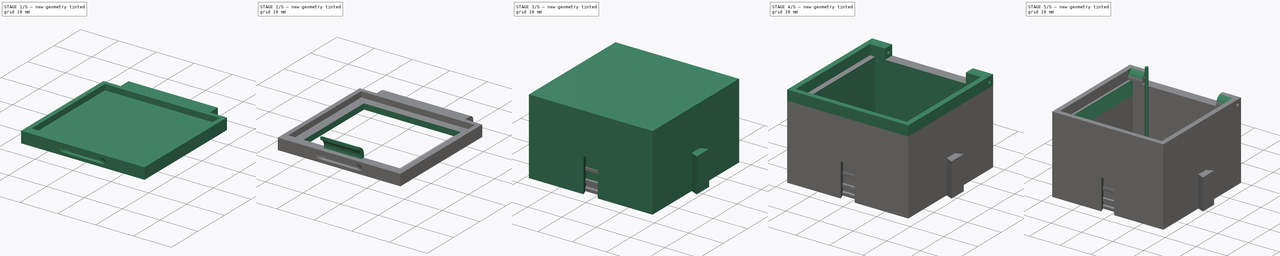
[diagram: build sequence overview — one tinted view per stage of 5, left to right]
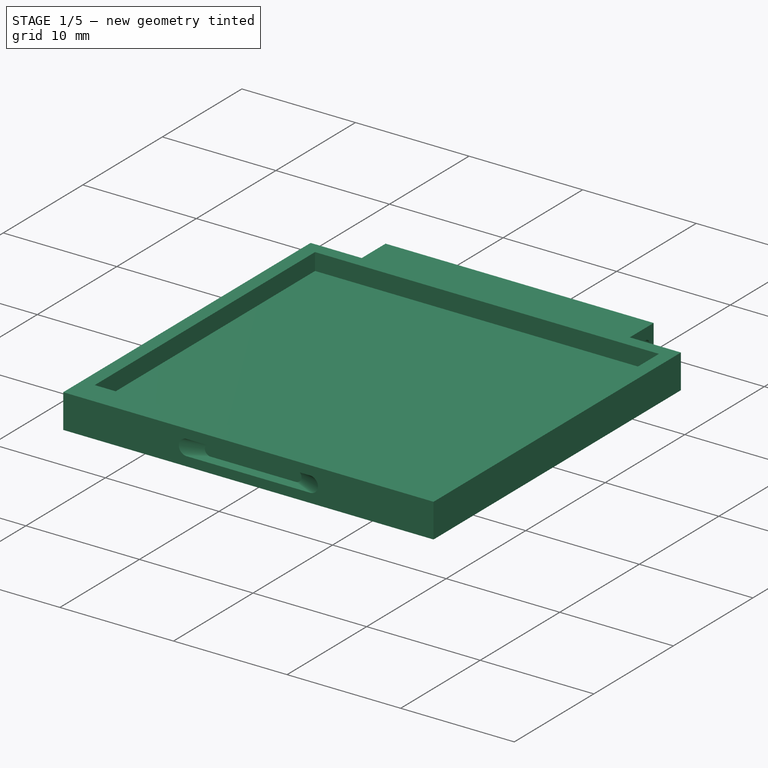
[diagram: stage 1 of 5 — iso view after this stage's code; geometry added in this stage tinted green]
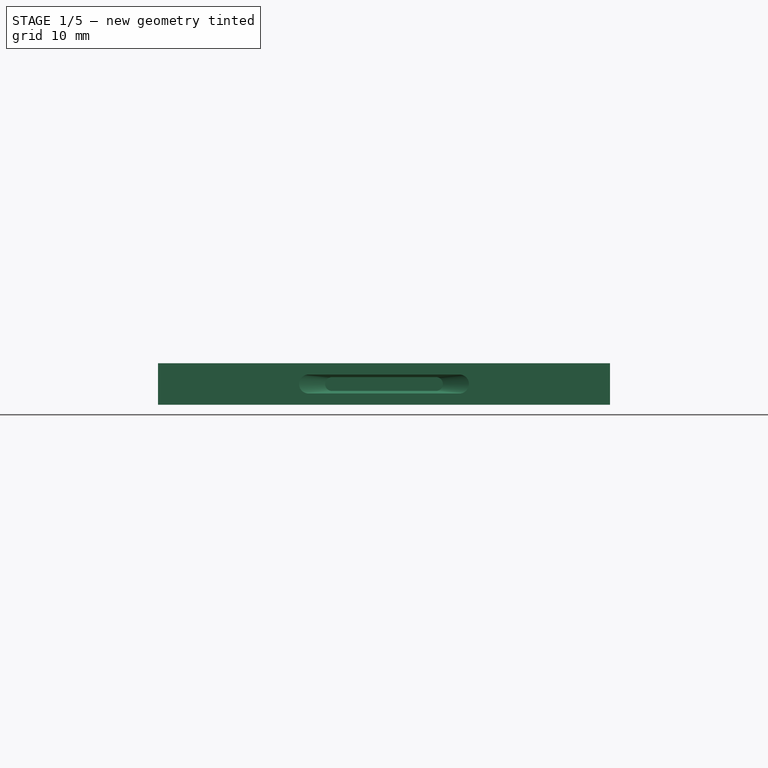
[diagram: stage 1 of 5 — front view after this stage's code; geometry added in this stage tinted green]
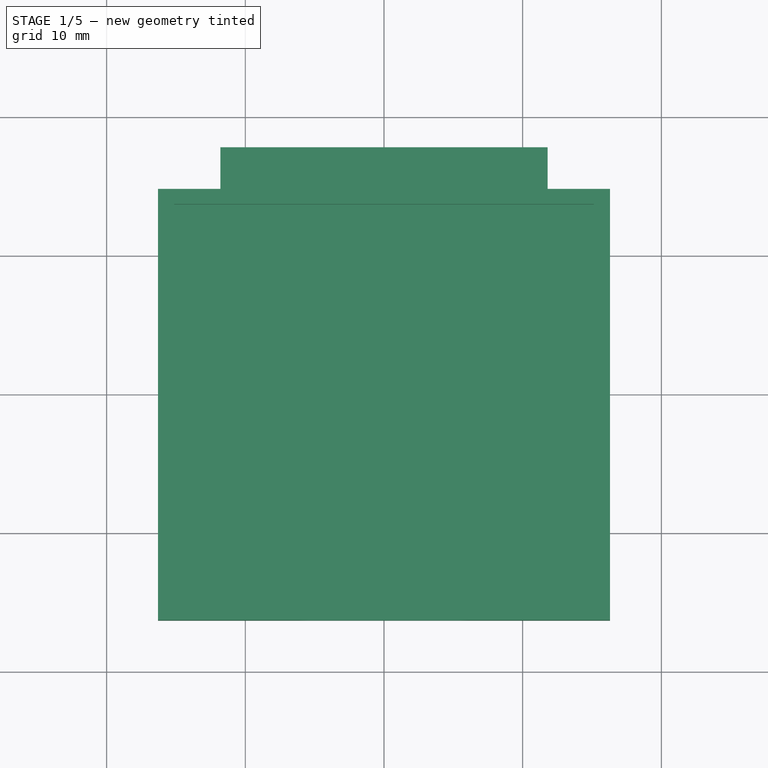
[diagram: stage 1 of 5 — top view after this stage's code; geometry added in this stage tinted green]
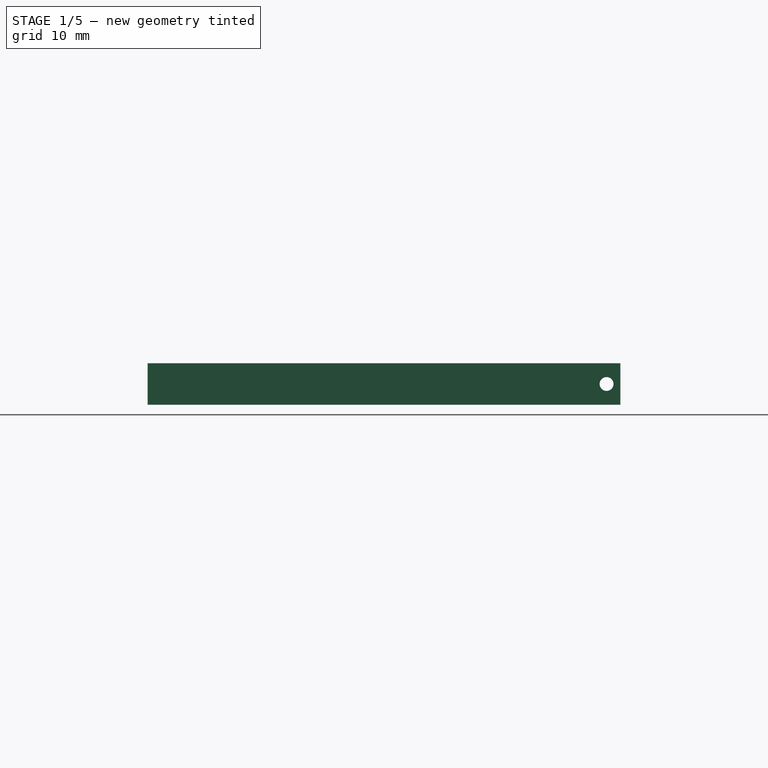
[diagram: stage 1 of 5 — right view after this stage's code; geometry added in this stage tinted green]
FCSTD DOCUMENT  (FreeCAD 0.19R22198 (Git))
Label: smd_smt_modular_boxes
License: All rights reserved
LicenseURL: http://en.wikipedia.org/wiki/All_rights_reserved
objects: Sketcher::SketchObject×16, PartDesign::CoordinateSystem×10, PartDesign::Plane×10, PartDesign::Pad×6, PartDesign::Pocket×6, App::Link×4, PartDesign::Body×3, PartDesign::Fillet×3, App::DocumentObjectGroup×2, PartDesign::ShapeBinder×2, App::FeaturePython×1, Spreadsheet::Sheet×1, PartDesign::AdditiveLoft×1, PartDesign::SubtractiveLoft×1, App::Part×1, PartDesign::Chamfer×1
note: 77 computed .brp shape members not serialized (recipe doc carries the construction recipe); baked Part::Feature solids carry a one-line shape summary decoded from their .brp

FEATURE [PartDesign::ShapeBinder] ShapeBinder001  label="ShapeBinderLead"
  Placement = pos=(0,0,22) rot=(0,0,1;0rad)
  Support = -> [Sketch005]
  TraceSupport = false
FEATURE [Sketcher::SketchObject] Sketch009
  ExternalGeometry = -> [ShapeBinder001]
  MapMode = 5
  Support = -> [XY_Plane002]
  expr: Constraints[23] = Spreadsheet.clearance
  expr: Constraints[22] = Spreadsheet.clearance
  expr: Constraints[21] = Spreadsheet.clearance
  expr: Constraints[16] = Spreadsheet.clearance
  expr: Constraints[15] = Spreadsheet.clearance
  sketch-geometry (9):
    g0: LineSegment StartX=-11.8 StartY=14.8 StartZ=0 EndX=-16.3 EndY=14.8 EndZ=0
    g1: LineSegment StartX=-16.3 StartY=14.8 StartZ=0 EndX=-16.3 EndY=-16.3 EndZ=0
    g2: LineSegment StartX=-16.3 StartY=-16.3 StartZ=0 EndX=16.3 EndY=-16.3 EndZ=0
    g3: LineSegment StartX=16.3 StartY=-16.3 StartZ=0 EndX=16.3 EndY=14.8 EndZ=0
    g4: LineSegment StartX=16.3 StartY=14.8 StartZ=0 EndX=11.8 EndY=14.8 EndZ=0
    g5: LineSegment StartX=11.8 StartY=14.8 StartZ=0 EndX=11.8 EndY=17.8 EndZ=0
    g6: LineSegment StartX=11.8 StartY=17.8 StartZ=0 EndX=-11.8 EndY=17.8 EndZ=0
    g7: LineSegment StartX=-11.8 StartY=17.8 StartZ=0 EndX=-11.8 EndY=14.8 EndZ=0
    g8: LineSegment [constr] StartX=-11.8 StartY=14.8 StartZ=0 EndX=11.8 EndY=14.8 EndZ=0
  constraints (24):
    c: Coincident(g7,g6)
    c: Coincident(g0,g7)
    c: Coincident(g1,g0)
    c: Coincident(g1,g2)
    c: Coincident(g3,g2)
    c: Coincident(g6,g5)
    c: Coincident(g4,g5)
    c: Coincident(g4,g3)
    c: Parallel(g-1,g0)
    c: Parallel(g-1,g4)
    c: Parallel(g-1,g2)
    c: Parallel(g-2,g3)
    c: Parallel(g-2,g1)
    c: Parallel(g-2,g5)
    c: Parallel(g-2,g7)
    c: DistanceY(g6,g-11) = 0.2
    c: DistanceY(g0,g-11) = 0.2
    c: Coincident(g8,g0)
    c: Coincident(g8,g4)
    c: Symmetric(g6,g5,g-2)
    c: Symmetric(g0,g3,g-2)
    c: DistanceX(g-9,g0) = 0.2
    c: DistanceX(g-11,g6) = 0.2
    c: DistanceY(g-7,g1) = 0.2
FEATURE [PartDesign::Pad] Pad003
  Length = 3
  Length2 = 100
  Profile = -> Sketch009
  Type = 0
  expr: Length = Spreadsheet.leadHight
FEATURE [PartDesign::Plane] DatumPlane005  label="DatumPlaneleadKeyOutside"
  AttachmentOffset = pos=(0,0,16.5) rot=(0,0,1;0rad)
  Length = 60
  MapMode = 5
  Placement = pos=(0,-16.5,-3.7e-15) rot=(1,0,0;1.5708rad)
  ResizeMode = 0
  Support = -> [XZ_Plane002]
  Width = 60
  expr: .AttachmentOffset.Base.z = Spreadsheet.width / 2 + Spreadsheet.wallWidth / 2
FEATURE [Sketcher::SketchObject] Sketch010  label="leadKeyOutside"
  MapMode = 5
  Placement = pos=(0,-16.5,-3.7e-15) rot=(1,0,0;1.5708rad)
  Support = -> [DatumPlane005]
  expr: Constraints[6] = Spreadsheet.LeadKeyBaseWidth
  expr: Constraints[7] = Spreadsheet.LeadKeyBaseLenght
  expr: Constraints[8] = Spreadsheet.leadHight / 2
  sketch-geometry (4):
    g0: ArcOfCircle CenterX=-6 CenterY=1.5 CenterZ=0 NormalX=0 NormalY=0 NormalZ=1 AngleXU=0 Radius=0.75 StartAngle=1.5708 EndAngle=4.71239
    g1: ArcOfCircle CenterX=6 CenterY=1.5 CenterZ=0 NormalX=0 NormalY=0 NormalZ=1 AngleXU=0 Radius=0.75 StartAngle=4.71239 EndAngle=7.85398
    g2: LineSegment StartX=-6 StartY=0.75 StartZ=0 EndX=6 EndY=0.75 EndZ=0
    g3: LineSegment StartX=-6 StartY=2.25 StartZ=0 EndX=6 EndY=2.25 EndZ=0
  constraints (9):
    c: Tangent(g0,g3)
    c: Tangent(g0,g2)
    c: Tangent(g2,g1)
    c: Tangent(g3,g1)
    c: Horizontal(g2)
    c: Symmetric(g0,g1,g-2)
    c: DistanceX(g0,g1) = 12
    c: DistanceY(g0,g0) = 1.5
    c: DistanceY(g-1,g0) = 1.5
FEATURE [PartDesign::Plane] DatumPlane006
  AttachmentOffset = pos=(0,0,15.7) rot=(0,0,1;0rad)
  Length = 60
  MapMode = 5
  Placement = pos=(0,-15.7,-3.5e-15) rot=(1,0,0;1.5708rad)
  ResizeMode = 0
  Support = -> [XZ_Plane002]
  Width = 60
  expr: .AttachmentOffset.Base.z = Spreadsheet.width / 2 + Spreadsheet.wallWidth / 2 - Spreadsheet.leadKeyPad
FEATURE [Sketcher::SketchObject] Sketch011  label="leadKeyInside"
  MapMode = 5
  Placement = pos=(0,-15.7,-3.5e-15) rot=(1,0,0;1.5708rad)
  Support = -> [DatumPlane006]
  expr: Constraints[6] = Spreadsheet.leadHight / 2
  expr: Constraints[7] = Spreadsheet.LeadKeyEndLength
  expr: Constraints[8] = Spreadsheet.LeadKeyEndWidth
  sketch-geometry (4):
    g0: ArcOfCircle CenterX=-3.75 CenterY=1.5 CenterZ=0 NormalX=0 NormalY=0 NormalZ=1 AngleXU=0 Radius=0.5 StartAngle=1.5708 EndAngle=4.71239
    g1: ArcOfCircle CenterX=3.75 CenterY=1.5 CenterZ=0 NormalX=0 NormalY=0 NormalZ=1 AngleXU=0 Radius=0.5 StartAngle=4.71239 EndAngle=7.85398
    g2: LineSegment StartX=-3.75 StartY=1 StartZ=0 EndX=3.75 EndY=1 EndZ=0
    g3: LineSegment StartX=-3.75 StartY=2 StartZ=0 EndX=3.75 EndY=2 EndZ=0
  constraints (9):
    c: Tangent(g0,g3)
    c: Tangent(g0,g2)
    c: Tangent(g2,g1)
    c: Tangent(g3,g1)
    c: Horizontal(g2)
    c: Symmetric(g0,g1,g-2)
    c: DistanceY(g-1,g0) = 1.5
    c: DistanceY(g0,g0) = 1
    c: DistanceX(g0,g1) = 7.5
FEATURE [PartDesign::SubtractiveLoft] SubtractiveLoft
  BaseFeature = -> Pad003
  Closed = false
  Profile = -> Sketch010
  Ruled = false
  Sections = -> [Sketch011]
FEATURE [PartDesign::Plane] DatumPlane007
  Length = 60
  MapMode = 5
  Placement = pos=(0,0,0) rot=(0.57735,0.57735,0.57735;2.0944rad)
  ResizeMode = 0
  Support = -> [YZ_Plane002]
  Width = 60
FEATURE [Sketcher::SketchObject] Sketch012  label="hingleHole"
  MapMode = 5
  Placement = pos=(0,0,0) rot=(0.57735,0.57735,0.57735;2.0944rad)
  Support = -> [DatumPlane007]
  expr: Constraints[0] = Spreadsheet.width / 2 + Spreadsheet.wallWidth * 0.6
  expr: Constraints[1] = Spreadsheet.leadHight / 2
  expr: Constraints[2] = Spreadsheet.leadMountingHole / 2
  sketch-geometry (1):
    g0: Circle CenterX=16.8 CenterY=1.5 CenterZ=0 NormalX=0 NormalY=0 NormalZ=1 AngleXU=0 Radius=0.5
  constraints (3):
    c: DistanceX(g-1,g0) = 16.8
    c: DistanceY(g-1,g0) = 1.5
    c: Radius(g0) = 0.5
FEATURE [PartDesign::Pocket] Pocket003
  BaseFeature = -> SubtractiveLoft
  Length = 5
  Length2 = 100
  Midplane = true
  Profile = -> Sketch012
  Type = 1
FEATURE [PartDesign::Plane] DatumPlane008
  AttachmentOffset = pos=(0,0,3) rot=(0,0,1;0rad)
  Length = 60
  MapMode = 5
  Placement = pos=(0,0,3) rot=(0,0,1;0rad)
  ResizeMode = 0
  Support = -> [XY_Plane002]
  Width = 60
  expr: .AttachmentOffset.Base.z = Spreadsheet.leadHight
FEATURE [Sketcher::SketchObject] Sketch013  label="resessForCover"
  ExternalGeometry = -> [ShapeBinder001]
  MapMode = 5
  Placement = pos=(0,0,3) rot=(0,0,1;0rad)
  Support = -> [DatumPlane008]
  sketch-geometry (6):
    g0: LineSegment StartX=-15.1381 StartY=13.7 StartZ=0 EndX=15.1381 EndY=13.7 EndZ=0
    g1: LineSegment StartX=15.1381 StartY=13.7 StartZ=0 EndX=15.1381 EndY=-14 EndZ=0
    g2: LineSegment StartX=15.1381 StartY=-14 StartZ=0 EndX=-15.1381 EndY=-14 EndZ=0
    g3: LineSegment StartX=-15.1381 StartY=-14 StartZ=0 EndX=-15.1381 EndY=13.7 EndZ=0
    g4: LineSegment [constr] StartX=-16.5 StartY=-16.5 StartZ=0 EndX=16.5 EndY=15 EndZ=0
    g5: LineSegment [constr] StartX=-16.5 StartY=15 StartZ=0 EndX=16.5 EndY=-16.5 EndZ=0
  constraints (16):
    c: Coincident(g0,g1)
    c: Coincident(g1,g2)
    c: Coincident(g2,g3)
    c: Coincident(g3,g0)
    c: Horizontal(g0)
    c: Horizontal(g2)
    c: Vertical(g1)
    c: Vertical(g3)
    c: Coincident(g-5,g4)
    c: Coincident(g5,g-7)
    c: Coincident(g5,g-4)
    c: PointOnObject(g0,g5)
    c: PointOnObject(g0,g4)
    c: Coincident(g4,g-7)
    c: DistanceY(g0,g5) = 1.3
    c: DistanceY(g4,g2) = 2.5
FEATURE [Sketcher::SketchObject] Sketch014  label="centralCut"
  ExternalGeometry = -> [ShapeBinder001]
  MapMode = 5
  Placement = pos=(0,0,3) rot=(0,0,1;0rad)
  Support = -> [DatumPlane008]
  sketch-geometry (6):
    g0: LineSegment [constr] StartX=-16.5 StartY=15 StartZ=0 EndX=16.5 EndY=-16.5 EndZ=0
    g1: LineSegment [constr] StartX=16.5 StartY=15 StartZ=0 EndX=-16.5 EndY=-16.5 EndZ=0
    g2: LineSegment StartX=-12.8832 StartY=11.5476 StartZ=0 EndX=12.8832 EndY=11.5476 EndZ=0
    g3: LineSegment StartX=12.8832 StartY=11.5476 StartZ=0 EndX=12.8832 EndY=-13.0476 EndZ=0
    g4: LineSegment StartX=12.8832 StartY=-13.0476 StartZ=0 EndX=-12.8832 EndY=-13.0476 EndZ=0
    g5: LineSegment StartX=-12.8832 StartY=-13.0476 StartZ=0 EndX=-12.8832 EndY=11.5476 EndZ=0
  constraints (16):
    c: Coincident(g0,g-4)
    c: Coincident(g0,g-6)
    c: Coincident(g1,g-7)
    c: Coincident(g1,g-5)
    c: Coincident(g2,g3)
    c: Coincident(g3,g4)
    c: Coincident(g4,g5)
    c: Coincident(g5,g2)
    c: Horizontal(g2)
    c: Horizontal(g4)
    c: Vertical(g3)
    c: Vertical(g5)
    c: PointOnObject(g2,g0)
    c: PointOnObject(g3,g0)
    c: PointOnObject(g2,g1)
    c: Distance(g2,g0) = 5
FEATURE [PartDesign::Pocket] Pocket004
  BaseFeature = -> Pocket003
  Length = 1.5
  Length2 = 100
  Profile = -> Sketch013
  Type = 0
  expr: Length = Spreadsheet.leadHight / 2
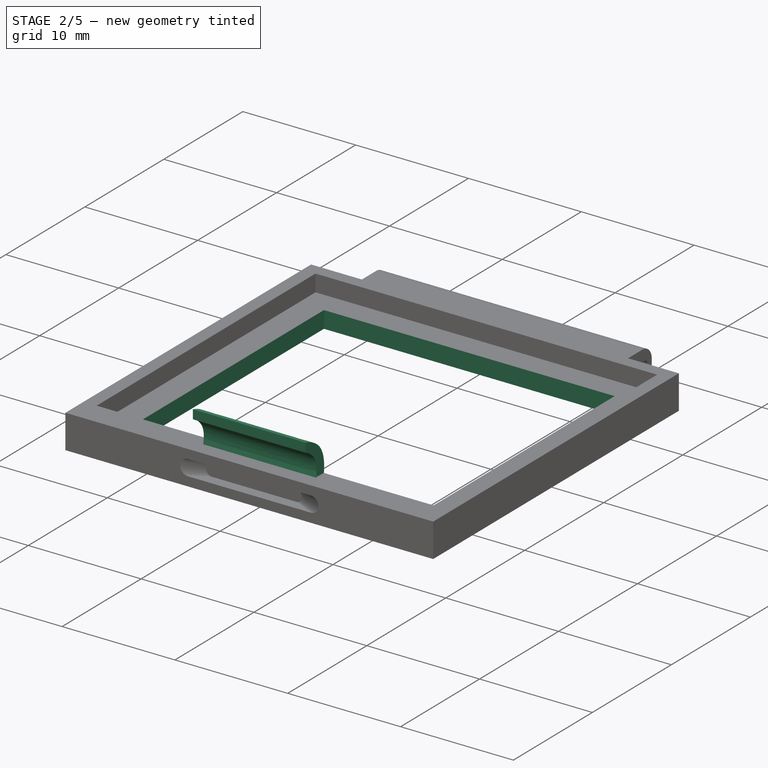
[diagram: stage 2 of 5 — iso view after this stage's code; geometry added in this stage tinted green]
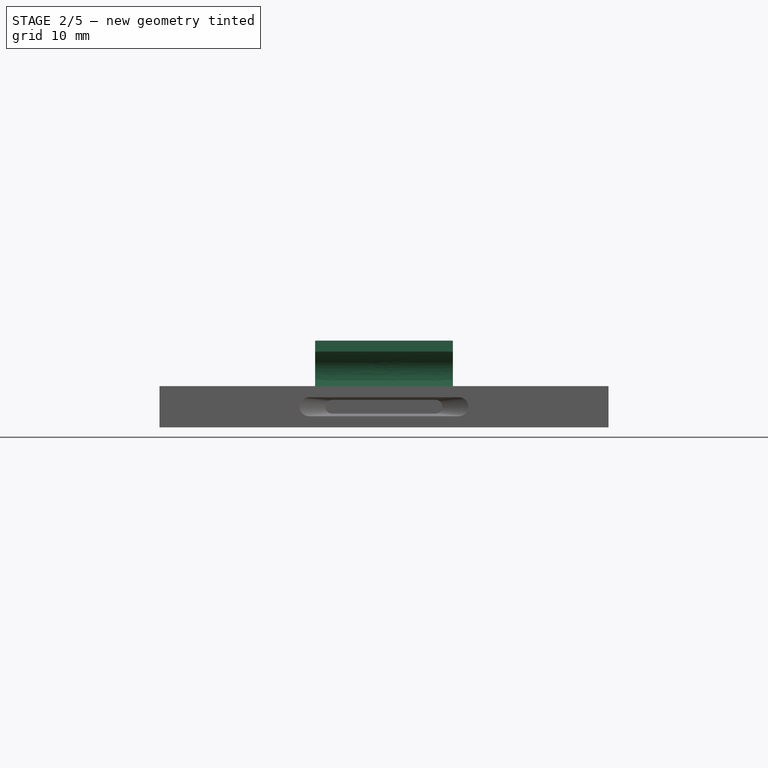
[diagram: stage 2 of 5 — front view after this stage's code; geometry added in this stage tinted green]
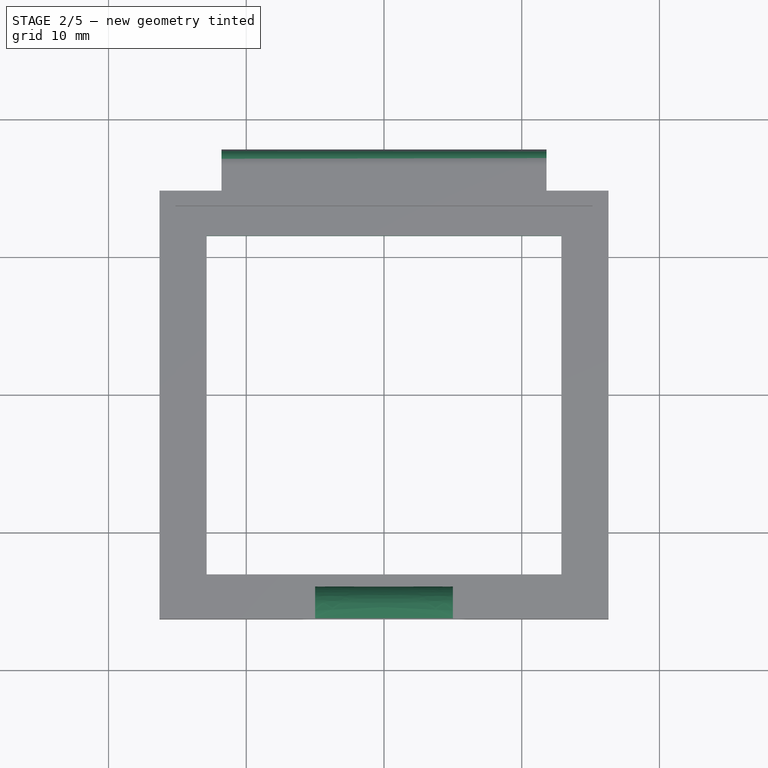
[diagram: stage 2 of 5 — top view after this stage's code; geometry added in this stage tinted green]
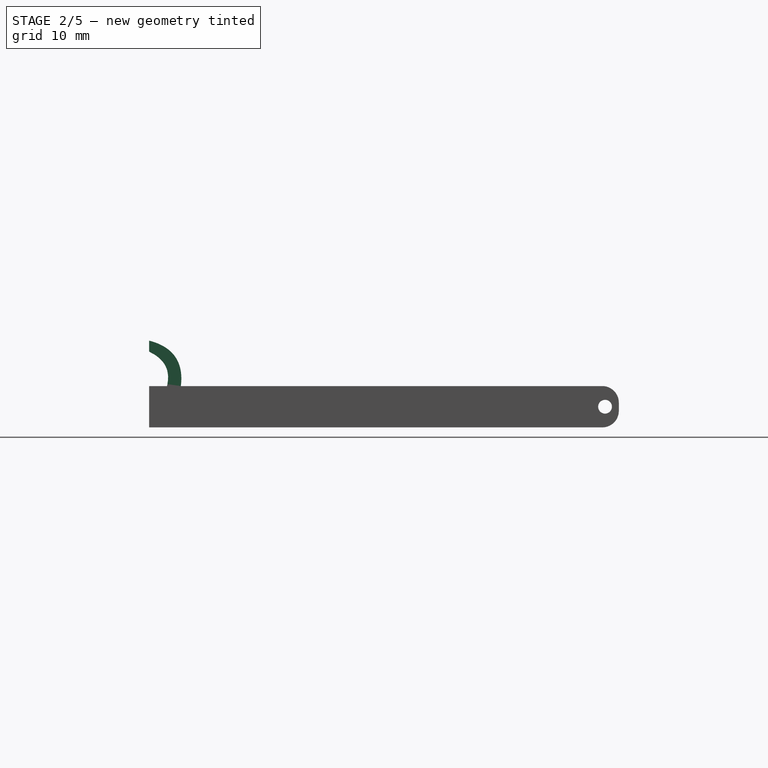
[diagram: stage 2 of 5 — right view after this stage's code; geometry added in this stage tinted green]
FEATURE [PartDesign::Pocket] Pocket005
  BaseFeature = -> Pocket004
  Length = 5
  Length2 = 100
  Profile = -> Sketch014
  Type = 1
FEATURE [PartDesign::Body] hingePin
  Group = -> [LCS_0002,Sketch015,Pad004]
  Origin = -> Origin003
  Tip = -> Pad004
FEATURE [PartDesign::CoordinateSystem] LCS_3  label="LCSPin"
  AttacherType = Attacher::AttachEngine3D
  MapMode = 11
  Placement = pos=(-13,27.25,23.5) rot=(0.707107,0,0.707107;3.14159rad)
FEATURE [App::Link] hingePin001
  AssemblyType = Asm4EE
  AttachedBy = #LCS_0002
  AttachedTo = box001#LCS_3
  LinkPlacement = pos=(-13,27.25,23.5) rot=(0.707107,0,0.707107;3.14159rad)
  LinkedObject = -> hingePin
  Placement = pos=(-13,27.25,23.5) rot=(0.707107,0,0.707107;3.14159rad)
  expr: Placement = box001.Placement * LCS_3.Placement * AttachmentOffset * LCS_0002.Placement ^ -1
FEATURE [PartDesign::Fillet] Fillet
  Base = -> Pocket005 [Edge21,Edge12]
  BaseFeature = -> Pocket005
  Radius = 1.2
  SupportTransform = false
FEATURE [PartDesign::Plane] DatumPlane009  label="DatumPlanehandle"
  Length = 60
  MapMode = 5
  Placement = pos=(0,0,0) rot=(0.57735,0.57735,0.57735;2.0944rad)
  ResizeMode = 0
  Support = -> [YZ_Plane002]
  Width = 60
FEATURE [Sketcher::SketchObject] Sketch018  label="handle"
  ExternalGeometry = -> [Sketch009,Sketch013]
  MapMode = 5
  Placement = pos=(0,0,0) rot=(0.57735,0.57735,0.57735;2.0944rad)
  Support = -> [DatumPlane009]
  sketch-geometry (17):
    g0: LineSegment [constr] StartX=-16.3 StartY=-1.8e-15 StartZ=0 EndX=-16.3 EndY=13.596 EndZ=0
    g1: LineSegment StartX=-14 StartY=3 StartZ=0 EndX=-15 EndY=3 EndZ=0
    g2: Circle [constr] CenterX=-14 CenterY=3 CenterZ=0 NormalX=0 NormalY=0 NormalZ=1 AngleXU=0 Radius=0.3
    g3: Circle [constr] CenterX=-13.6798 CenterY=5.61911 CenterZ=0 NormalX=0 NormalY=0 NormalZ=1 AngleXU=0 Radius=0.3
    g4: Circle [constr] CenterX=-16.3 CenterY=6.3 CenterZ=0 NormalX=0 NormalY=0 NormalZ=1 AngleXU=0 Radius=0.3
    g5: BSplineCurve PolesCount=3 KnotsCount=2 Degree=2 IsPeriodic=0
    g6: GeomPoint [constr] X=-14 Y=3 Z=0
    g7: GeomPoint [constr] X=-16.3 Y=6.3 Z=0
    g8: Circle [constr] CenterX=-15 CenterY=3 CenterZ=0 NormalX=0 NormalY=0 NormalZ=1 AngleXU=0 Radius=0.2
    g9: Circle [constr] CenterX=-14.5899 CenterY=4.69846 CenterZ=0 NormalX=0 NormalY=0 NormalZ=1 AngleXU=0 Radius=0.2
    g10: Circle [constr] CenterX=-16.3 CenterY=5.5 CenterZ=0 NormalX=0 NormalY=0 NormalZ=1 AngleXU=0 Radius=0.2
    g11: BSplineCurve PolesCount=3 KnotsCount=2 Degree=2 IsPeriodic=0
    g12: GeomPoint [constr] X=-15 Y=3 Z=0
    g13: GeomPoint [constr] X=-16.3 Y=5.5 Z=0
    g14: LineSegment StartX=-16.3 StartY=5.5 StartZ=0 EndX=-16.3 EndY=6.3 EndZ=0
    g15: LineSegment [constr] StartX=-16.3 StartY=-1.8e-15 StartZ=0 EndX=-14.5899 EndY=4.69846 EndZ=0
    g16: LineSegment [constr] StartX=-16.3 StartY=-1.8e-15 StartZ=0 EndX=-13.6798 EndY=5.61911 EndZ=0
  constraints (37):
    c: Coincident(g0,g-3)
    c: Vertical(g0)
    c: Parallel(g1,g-1)
    c: Coincident(g5,g1)
    c: Radius(g2) = 0.3
    c: Equal(g2,g3)
    c: Equal(g2,g4)
    c: PointOnObject(g5,g0)
    c: InternalAlignment(g2,g5)
    c: InternalAlignment(g3,g5)
    c: InternalAlignment(g4,g5)
    c: InternalAlignment(g6,g5)
    c: InternalAlignment(g7,g5)
    c: Coincident(g11,g1)
    c: Radius(g8) = 0.2
    c: Equal(g8,g9)
    c: Equal(g8,g10)
    c: PointOnObject(g11,g0)
    c: InternalAlignment(g8,g11)
    c: InternalAlignment(g9,g11)
    c: InternalAlignment(g10,g11)
    c: InternalAlignment(g12,g11)
    c: InternalAlignment(g13,g11)
    c: Coincident(g14,g11)
    c: Coincident(g14,g5)
    c: DistanceY(g11,g5) = 0.8
    c: Coincident(g1,g-4)
    c: DistanceX(g1,g1) = 1
    c: DistanceY(g1,g11) = 2.5
    c: Coincident(g15,g0)
    c: Coincident(g15,g9)
    c: Coincident(g16,g0)
    c: Coincident(g16,g3)
    c: Angle(g-1,g16) = 1.13446
    c: Angle(g-1,g15) = 1.22173
    c: Distance(g0,g9) = 5
    c: Distance(g0,g3) = 6.2
FEATURE [PartDesign::Pad] Pad005
  BaseFeature = -> Fillet
  Length = 10
  Length2 = 100
  Midplane = true
  Profile = -> Sketch018
  Type = 0
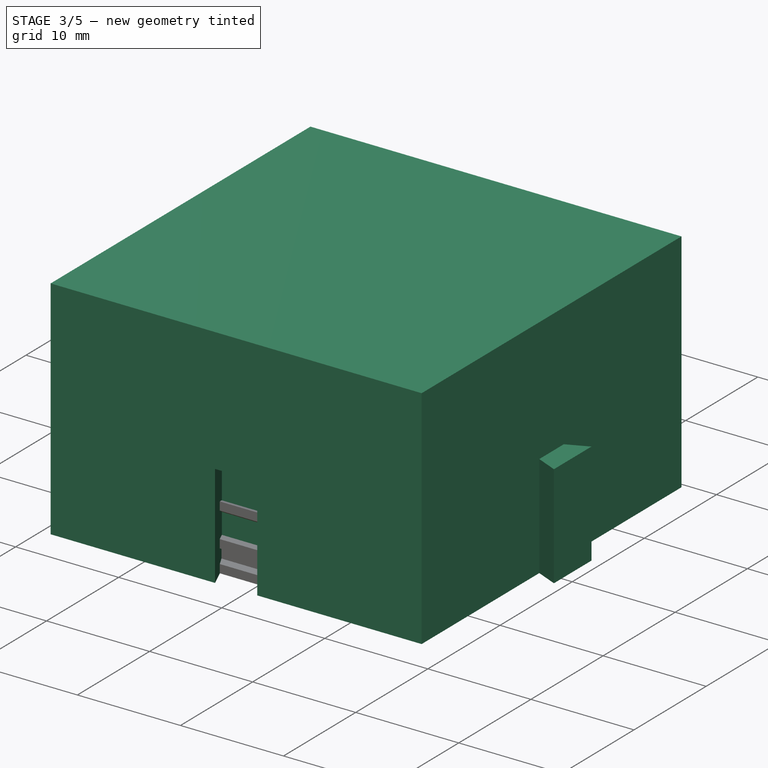
[diagram: stage 3 of 5 — iso view after this stage's code; geometry added in this stage tinted green]
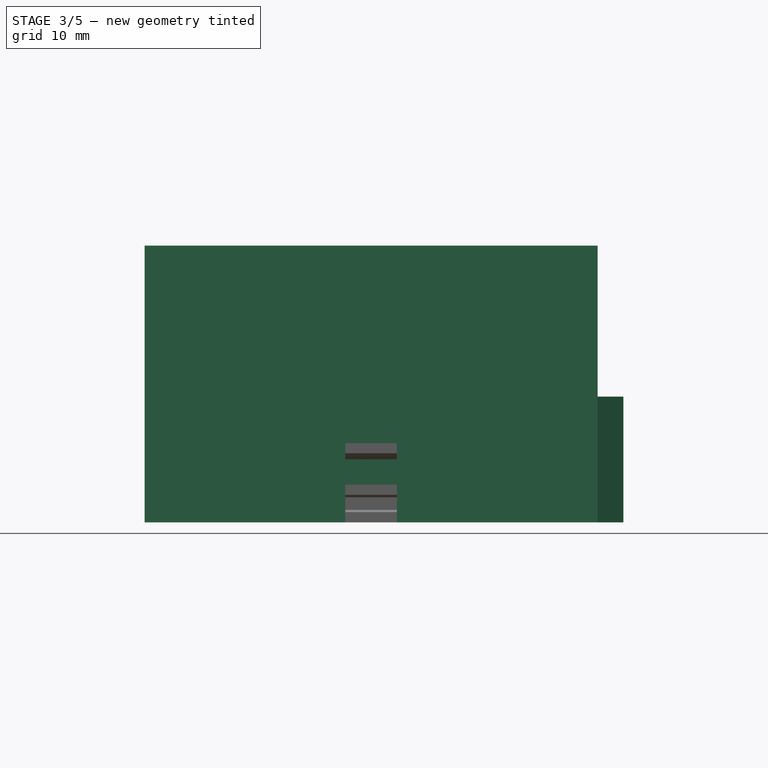
[diagram: stage 3 of 5 — front view after this stage's code; geometry added in this stage tinted green]
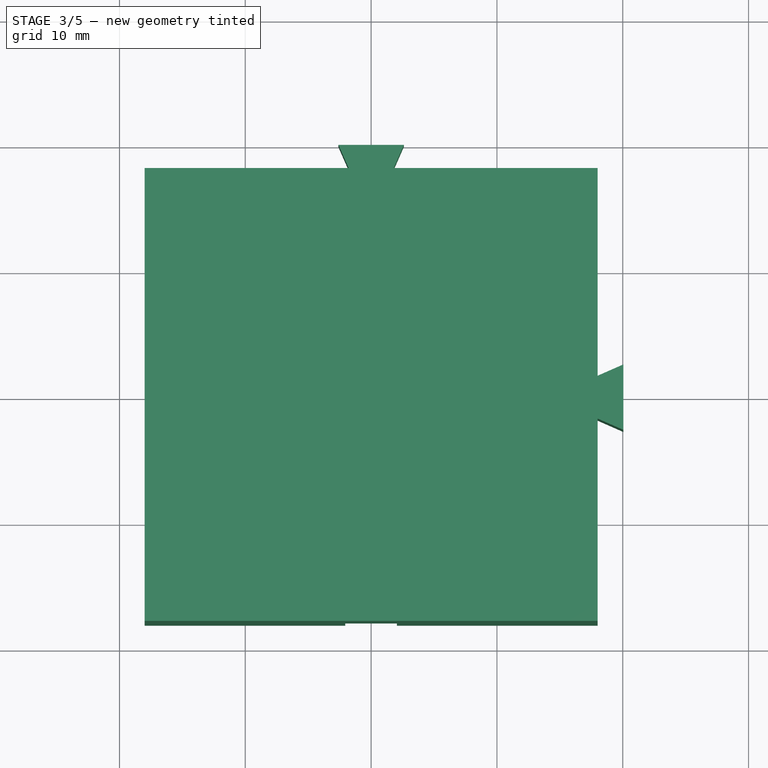
[diagram: stage 3 of 5 — top view after this stage's code; geometry added in this stage tinted green]
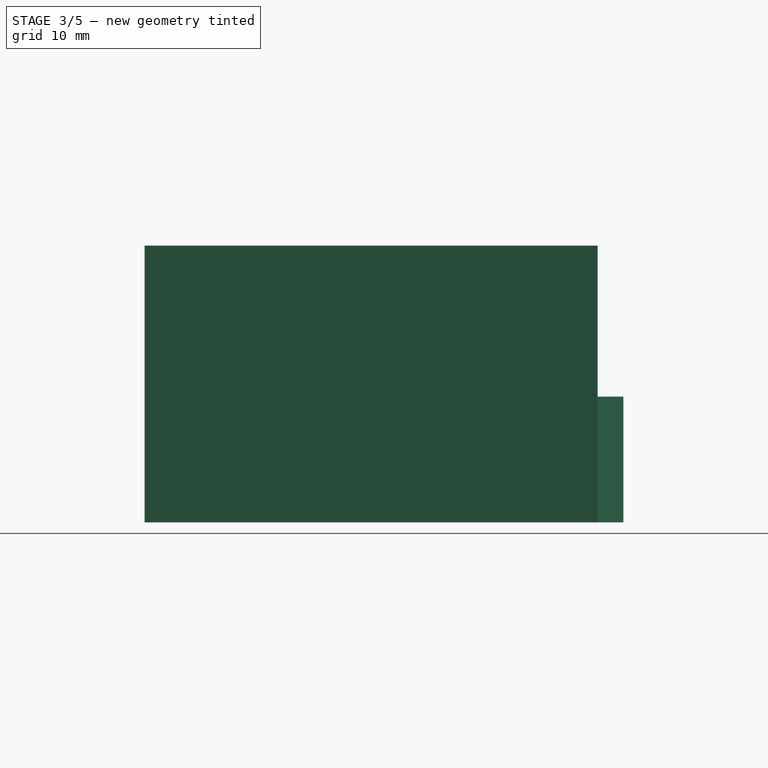
[diagram: stage 3 of 5 — right view after this stage's code; geometry added in this stage tinted green]
FEATURE [PartDesign::CoordinateSystem] LCS_Origin
  AttacherType = Attacher::AttachEngine3D
  MapMode = 2
  Support = -> [X_Axis]
FEATURE [App::DocumentObjectGroup] Constraints
FEATURE [App::FeaturePython] Variables  # WARN: FeaturePython — macro-defined, semantics opaque (R4)
  angleLead = 0
FEATURE [PartDesign::CoordinateSystem] LCS_0
  AttacherType = Attacher::AttachEngine3D
  MapMode = 2
  Support = -> [X_Axis001]
FEATURE [PartDesign::CoordinateSystem] LCS_0001
  AttacherType = Attacher::AttachEngine3D
  MapMode = 2
  Support = -> [X_Axis002]
FEATURE [Spreadsheet::Sheet] Spreadsheet
  cells = A1=lenght; B1(lenght)==30mm; A2=width; B2(width)==30mm; A3=hight; B3(hight)==20mm; A4=wallWidth; B4(wallWidth)==3mm; A5=buttonPad; B5(buttonPad)==2mm; A6=clearance3dPrinting; B6(clearance)==0.2mm; A7=LeadHight; B7(leadHight)==3mm; A8=leadMountingHoleDiameter; B8(leadMountingHole)==1mm; A9=leadKeyPad; B9(leadKeyPad)==0.8mm; A10=leadKeyBaseWidth; B10(LeadKeyBaseWidth)==width / 2.5; A11=LeadKeyBaseLength; B11(LeadKeyBaseLenght)==leadHight / 2; A12=leadKeyEndWidth; B12(LeadKeyEndWidth)==width / 4; A13=leadKeyEndLength; B13(LeadKeyEndLength)==leadHight / 3
FEATURE [PartDesign::Plane] DatumPlane
  Length = 60
  MapMode = 5
  ResizeMode = 0
  Support = -> [XY_Plane001]
  Width = 60
FEATURE [Sketcher::SketchObject] Sketch  label="baseExternal"
  MapMode = 5
  Support = -> [DatumPlane]
  expr: Constraints[8] = Spreadsheet.lenght + Spreadsheet.wallWidth * 2
  expr: Constraints[9] = Spreadsheet.width + Spreadsheet.wallWidth * 2
  sketch-geometry (4):
    g0: LineSegment StartX=-18 StartY=18 StartZ=0 EndX=18 EndY=18 EndZ=0
    g1: LineSegment StartX=18 StartY=18 StartZ=0 EndX=18 EndY=-18 EndZ=0
    g2: LineSegment StartX=18 StartY=-18 StartZ=0 EndX=-18 EndY=-18 EndZ=0
    g3: LineSegment StartX=-18 StartY=-18 StartZ=0 EndX=-18 EndY=18 EndZ=0
  constraints (10):
    c: Coincident(g0,g1)
    c: Coincident(g1,g2)
    c: Coincident(g2,g3)
    c: Coincident(g3,g0)
    c: Horizontal(g2)
    c: Vertical(g3)
    c: Symmetric(g0,g0,g-2)
    c: Symmetric(g0,g1,g-1)
    c: DistanceX(g0,g0) = 36
    c: DistanceY(g1,g0) = 36
FEATURE [PartDesign::Pad] Pad
  Length = 22
  Length2 = 100
  Profile = -> Sketch
  Type = 0
  expr: Length = Spreadsheet.hight + Spreadsheet.buttonPad
FEATURE [PartDesign::ShapeBinder] ShapeBinder  label="baseExternalBinder"
  Support = -> [Sketch]
  TraceSupport = false
FEATURE [Sketcher::SketchObject] Sketch001  label="outsideDovetail"
  ExternalGeometry = -> [ShapeBinder]
  MapMode = 5
  Support = -> [DatumPlane]
  expr: Constraints[7] = Spreadsheet.wallWidth * 0.75 - Spreadsheet.clearance
  expr: Constraints[8] = Spreadsheet.wallWidth * 1.8 - Spreadsheet.clearance
  expr: Constraints[9] = Spreadsheet.wallWidth * 1.2 - Spreadsheet.clearance
  expr: Constraints[19] = Spreadsheet.wallWidth * 0.75 - Spreadsheet.clearance
  sketch-geometry (8):
    g0: LineSegment StartX=-1.7 StartY=18 StartZ=0 EndX=1.7 EndY=18 EndZ=0
    g1: LineSegment StartX=1.7 StartY=18 StartZ=0 EndX=2.6 EndY=20.05 EndZ=0
    g2: LineSegment StartX=2.6 StartY=20.05 StartZ=0 EndX=-2.6 EndY=20.05 EndZ=0
    g3: LineSegment StartX=-2.6 StartY=20.05 StartZ=0 EndX=-1.7 EndY=18 EndZ=0
    g4: LineSegment StartX=18 StartY=1.7 StartZ=0 EndX=18 EndY=-1.7 EndZ=0
    g5: LineSegment StartX=18 StartY=-1.7 StartZ=0 EndX=20.05 EndY=-2.6 EndZ=0
    g6: LineSegment StartX=20.05 StartY=-2.6 StartZ=0 EndX=20.05 EndY=2.6 EndZ=0
    g7: LineSegment StartX=20.05 StartY=2.6 StartZ=0 EndX=18 EndY=1.7 EndZ=0
  constraints (20):
    c: PointOnObject(g0,g-3)
    c: Coincident(g0,g1)
    c: Coincident(g1,g2)
    c: Coincident(g2,g3)
    c: Coincident(g3,g0)
    c: Symmetric(g2,g1,g-2)
    c: Symmetric(g0,g0,g-2)
    c: DistanceY(g0,g1) = 2.05
    c: DistanceX(g2,g1) = 5.2
    c: DistanceX(g0,g0) = 3.4
    c: Coincident(g4,g5)
    c: Coincident(g5,g6)
    c: Coincident(g6,g7)
    c: Coincident(g7,g4)
    c: Equal(g0,g4) = 3.8
    c: Symmetric(g4,g4,g-1)
    c: Symmetric(g5,g6,g-1)
    c: PointOnObject(g4,g-4)
    c: Equal(g2,g6)
    c: DistanceX(g4,g6) = 2.05
FEATURE [Sketcher::SketchObject] Sketch003  label="insideDovetail"
  ExternalGeometry = -> [ShapeBinder]
  MapMode = 5
  Support = -> [DatumPlane]
  expr: Constraints[19] = Spreadsheet.wallWidth * 0.75 + Spreadsheet.clearance
  expr: Constraints[7] = Spreadsheet.wallWidth * 1.3 + Spreadsheet.clearance
  expr: Constraints[6] = Spreadsheet.wallWidth * 2 + Spreadsheet.clearance
  expr: Constraints[18] = Spreadsheet.wallWidth * 0.75 + Spreadsheet.clearance
  sketch-geometry (8):
    g0: LineSegment StartX=-2.05 StartY=-18 StartZ=0 EndX=2.05 EndY=-18 EndZ=0
    g1: LineSegment StartX=2.05 StartY=-18 StartZ=0 EndX=3.1 EndY=-15.55 EndZ=0
    g2: LineSegment StartX=3.1 StartY=-15.55 StartZ=0 EndX=-3.1 EndY=-15.55 EndZ=0
    g3: LineSegment StartX=-3.1 StartY=-15.55 StartZ=0 EndX=-2.05 EndY=-18 EndZ=0
    g4: LineSegment StartX=-18 StartY=2.05 StartZ=0 EndX=-18 EndY=-2.05 EndZ=0
    g5: LineSegment StartX=-18 StartY=-2.05 StartZ=0 EndX=-15.55 EndY=-3.1 EndZ=0
    g6: LineSegment StartX=-15.55 StartY=-3.1 StartZ=0 EndX=-15.55 EndY=3.1 EndZ=0
    g7: LineSegment StartX=-15.55 StartY=3.1 StartZ=0 EndX=-18 EndY=2.05 EndZ=0
  constraints (20):
    c: Coincident(g0,g1)
    c: Coincident(g1,g2)
    c: Coincident(g2,g3)
    c: Coincident(g3,g0)
    c: Symmetric(g2,g1,g-2)
    c: Symmetric(g0,g0,g-2)
    c: DistanceX(g2,g1) = 6.2
    c: DistanceX(g0,g0) = 4.1
    c: Coincident(g4,g5)
    c: Coincident(g5,g6)
    c: Coincident(g6,g7)
    c: Coincident(g7,g4)
    c: Equal(g0,g4) = 3.8
    c: Symmetric(g4,g4,g-1)
    c: Symmetric(g5,g6,g-1)
    c: Equal(g2,g6)
    c: PointOnObject(g0,g-4)
    c: PointOnObject(g4,g-3)
    c: DistanceY(g0,g1) = 2.45
    c: DistanceX(g4,g6) = 2.45
FEATURE [PartDesign::Pad] Pad001
  BaseFeature = -> Pad
  Length = 10
  Length2 = 100
  Profile = -> Sketch001
  Type = 0
  expr: Length = Spreadsheet.hight / 2
FEATURE [PartDesign::Pocket] Pocket
  BaseFeature = -> Pad001
  Length = 10
  Length2 = 100
  Profile = -> Sketch003
  Reversed = true
  Type = 0
  expr: Length = Spreadsheet.hight / 2
FEATURE [PartDesign::CoordinateSystem] LCS_4  label="LCSMale"
  AttacherType = Attacher::AttachEngine3D
  AttachmentOffset = pos=(0,0,-2.75) rot=(0,0,1;0rad)
  MapMode = 7
  Placement = pos=(20.05,0.15,-6e-16) rot=(1,0,0;1.5708rad)
  Support = -> [Chamfer]
  expr: .AttachmentOffset.Base.z = -1 * (Spreadsheet.wallWidth * 1.9 - Spreadsheet.clearance) / 2
FEATURE [PartDesign::CoordinateSystem] LCS_5  label="LCSFemale"
  AttacherType = Attacher::AttachEngine3D
  AttachmentOffset = pos=(-0.4,0,-3.1) rot=(0,0,1;0rad)
  MapMode = 7
  Placement = pos=(-15.95,0,-7e-16) rot=(1,0,0;1.5708rad)
  Support = -> [Chamfer]
  expr: .AttachmentOffset.Base.z = -1 * (Spreadsheet.wallWidth * 2 + Spreadsheet.clearance) / 2
  expr: .AttachmentOffset.Base.x = -2 * Spreadsheet.clearance
FEATURE [PartDesign::Body] box
  Group = -> [LCS_0,DatumPlane,Sketch,Pad,ShapeBinder,Sketch001,Sketch003,Pad001,Pocket,DatumPlane001,Sketch004,Pocket001,Sketch005,Pad002,DatumPlane002,Sketch006,Pocket002,DatumPlane003,Sketch007,DatumPlane004,Sketch008,AdditiveLoft,LCS_1,LCS_3,LCS_4,LCS_5,Local_CS,Fillet001,Chamfer]
  Origin = -> Origin001
  Tip = -> Chamfer
FEATURE [PartDesign::Fillet] Fillet002
  Base = -> Pad005 [Edge45,Edge44,Edge39,Edge43]
  BaseFeature = -> Pad005
  Radius = 2
  SupportTransform = false
FEATURE [PartDesign::Body] cover
  Group = -> [LCS_0001,ShapeBinder001,Sketch009,Pad003,DatumPlane005,Sketch010,DatumPlane006,Sketch011,SubtractiveLoft,DatumPlane007,Sketch012,Pocket003,DatumPlane008,Sketch013,Sketch014,Pocket004,Pocket005,LCS_2,Fillet,DatumPlane009,Sketch018,Pad005,Fillet002]
  Origin = -> Origin002
  Placement = pos=(0,0,55) rot=(0,0,1;0rad)
  Tip = -> Fillet002
FEATURE [App::DocumentObjectGroup] Parts
  Group = -> [box,cover,hingePin]
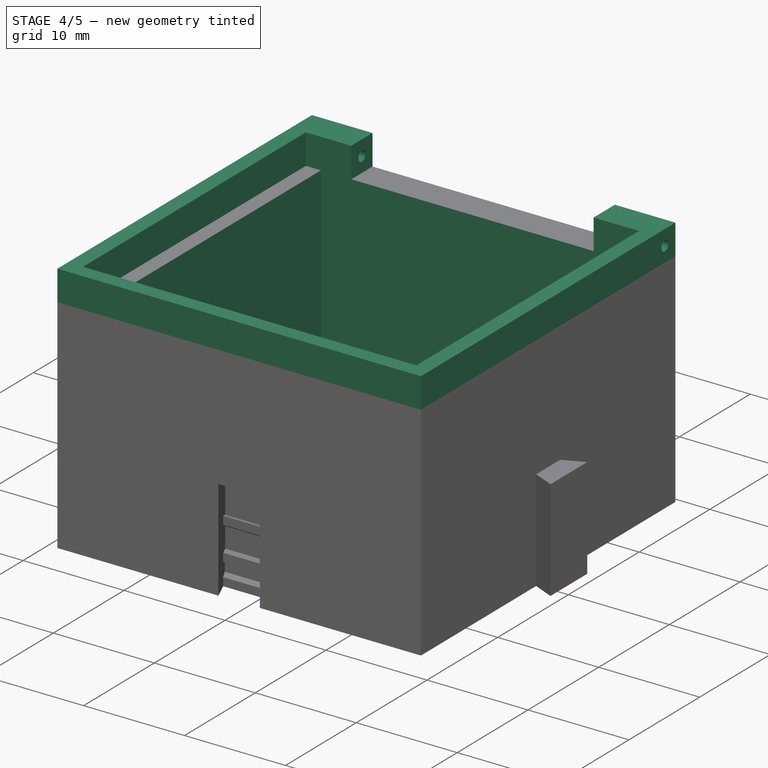
[diagram: stage 4 of 5 — iso view after this stage's code; geometry added in this stage tinted green]
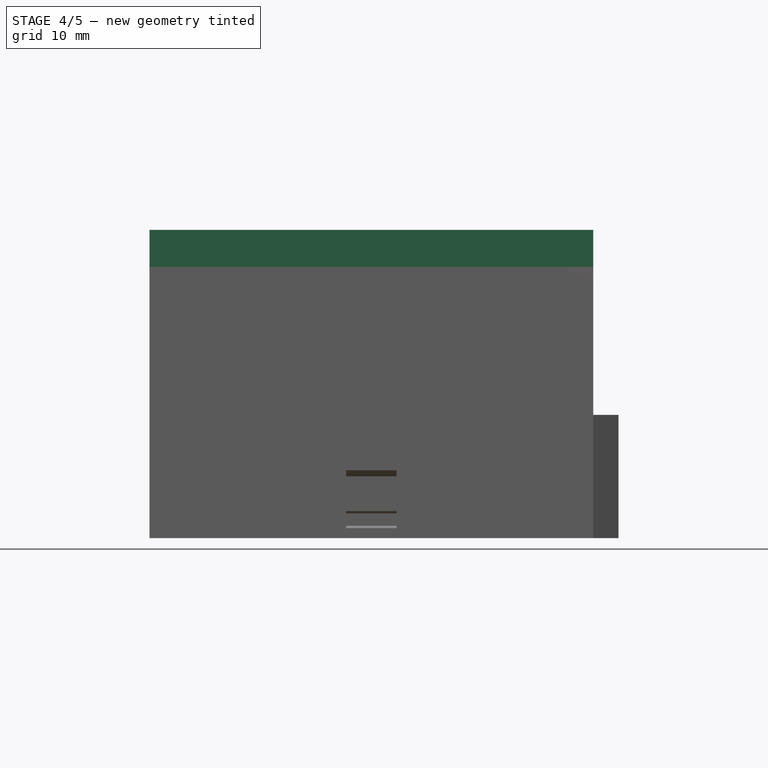
[diagram: stage 4 of 5 — front view after this stage's code; geometry added in this stage tinted green]
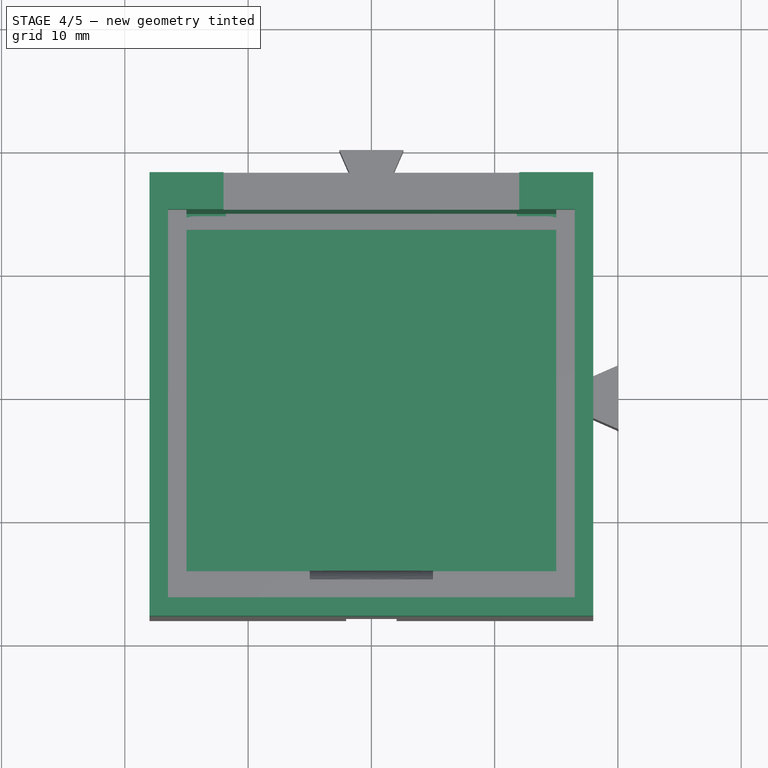
[diagram: stage 4 of 5 — top view after this stage's code; geometry added in this stage tinted green]
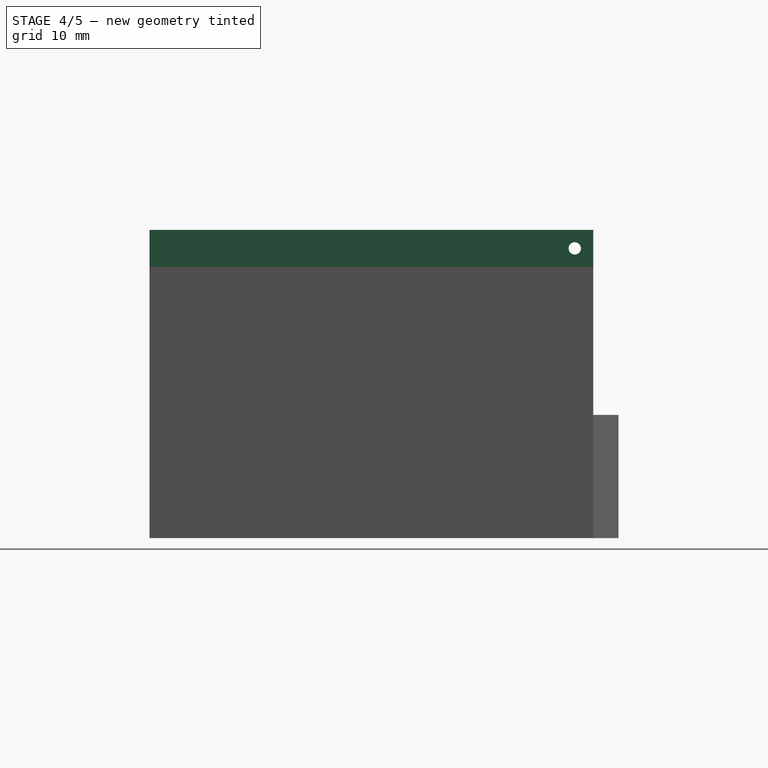
[diagram: stage 4 of 5 — right view after this stage's code; geometry added in this stage tinted green]
FEATURE [PartDesign::Plane] DatumPlane001
  AttachmentOffset = pos=(0,0,22) rot=(0,0,1;0rad)
  Length = 60
  MapMode = 2
  Placement = pos=(0,0,22) rot=(0,0,1;0rad)
  ResizeMode = 0
  Support = -> [XY_Plane001]
  Width = 60
  expr: .AttachmentOffset.Base.z = Spreadsheet.hight + Spreadsheet.buttonPad
FEATURE [Sketcher::SketchObject] Sketch004
  MapMode = 5
  Placement = pos=(0,0,22) rot=(0,0,1;0rad)
  Support = -> [DatumPlane001]
  expr: Constraints[6] = Spreadsheet.lenght
  expr: Constraints[9] = Spreadsheet.width
  sketch-geometry (4):
    g0: LineSegment StartX=-15 StartY=15 StartZ=0 EndX=15 EndY=15 EndZ=0
    g1: LineSegment StartX=15 StartY=15 StartZ=0 EndX=15 EndY=-15 EndZ=0
    g2: LineSegment StartX=15 StartY=-15 StartZ=0 EndX=-15 EndY=-15 EndZ=0
    g3: LineSegment StartX=-15 StartY=-15 StartZ=0 EndX=-15 EndY=15 EndZ=0
  constraints (10):
    c: Coincident(g0,g1)
    c: Coincident(g1,g2)
    c: Coincident(g2,g3)
    c: Coincident(g3,g0)
    c: Horizontal(g2)
    c: Vertical(g3)
    c: DistanceX(g0,g0) = 30
    c: Symmetric(g0,g0,g-2)
    c: Symmetric(g0,g1,g-1)
    c: DistanceY(g1,g0) = 30
FEATURE [PartDesign::Pocket] Pocket001
  BaseFeature = -> Pocket
  Length = 20
  Length2 = 100
  Profile = -> Sketch004
  Type = 0
  expr: Length = Spreadsheet.hight
FEATURE [Sketcher::SketchObject] Sketch005  label="lead"
  ExternalGeometry = -> [ShapeBinder]
  MapMode = 5
  Placement = pos=(0,0,22) rot=(0,0,1;0rad)
  Support = -> [DatumPlane001]
  expr: Constraints[25] = Spreadsheet.wallWidth / 2
  expr: Constraints[23] = Spreadsheet.wallWidth
  expr: Constraints[14] = Spreadsheet.wallWidth / 2
  expr: Constraints[26] = Spreadsheet.wallWidth * 2
  sketch-geometry (12):
    g0: LineSegment StartX=-18 StartY=18 StartZ=0 EndX=-12 EndY=18 EndZ=0
    g1: LineSegment StartX=18 StartY=18 StartZ=0 EndX=18 EndY=-18 EndZ=0
    g2: LineSegment StartX=18 StartY=-18 StartZ=0 EndX=-18 EndY=-18 EndZ=0
    g3: LineSegment StartX=-18 StartY=-18 StartZ=0 EndX=-18 EndY=18 EndZ=0
    g4: LineSegment StartX=-16.5 StartY=15 StartZ=0 EndX=-12 EndY=15 EndZ=0
    g5: LineSegment StartX=16.5 StartY=15 StartZ=0 EndX=16.5 EndY=-16.5 EndZ=0
    g6: LineSegment StartX=-16.5 StartY=-16.5 StartZ=0 EndX=-16.5 EndY=15 EndZ=0
    g7: LineSegment StartX=-12 StartY=15 StartZ=0 EndX=-12 EndY=18 EndZ=0
    g8: LineSegment StartX=12 StartY=15 StartZ=0 EndX=12 EndY=18 EndZ=0
    g9: LineSegment StartX=12 StartY=15 StartZ=0 EndX=16.5 EndY=15 EndZ=0
    g10: LineSegment StartX=12 StartY=18 StartZ=0 EndX=18 EndY=18 EndZ=0
    g11: LineSegment StartX=-16.5 StartY=-16.5 StartZ=0 EndX=16.5 EndY=-16.5 EndZ=0
  constraints (30):
    c: Coincident(g10,g1)
    c: Coincident(g1,g2)
    c: Coincident(g2,g3)
    c: Coincident(g3,g0)
    c: Horizontal(g0)
    c: Horizontal(g2)
    c: Vertical(g1)
    c: Vertical(g3)
    c: Coincident(g0,g-6)
    c: Coincident(g1,g-5)
    c: Coincident(g9,g5)
    c: Coincident(g6,g4)
    c: Vertical(g6)
    c: Symmetric(g9,g4,g-2)
    c: DistanceX(g0,g4) = 1.5
    c: Vertical(g8)
    c: Parallel(g7,g-2)
    c: Coincident(g4,g7)
    c: Coincident(g9,g8)
    c: Tangent(g4,g9)
    c: Coincident(g0,g7)
    c: Coincident(g10,g8)
    c: Tangent(g0,g10)
    c: DistanceY(g4,g0) = 3
    c: Symmetric(g11,g11,g-2)
    c: DistanceY(g2,g11) = 1.5
    c: DistanceX(g0,g0) = 6
    c: Symmetric(g4,g8,g-2)
    c: Coincident(g11,g6)
    c: Coincident(g5,g11)
FEATURE [PartDesign::Pad] Pad002
  BaseFeature = -> Pocket001
  Length = 3
  Length2 = 100
  Profile = -> Sketch005
  Type = 0
  expr: Length = Spreadsheet.leadHight
FEATURE [PartDesign::Plane] DatumPlane002
  Length = 60
  MapMode = 5
  Placement = pos=(0,0,0) rot=(0.57735,0.57735,0.57735;2.0944rad)
  ResizeMode = 0
  Support = -> [YZ_Plane001]
  Width = 60
FEATURE [Sketcher::SketchObject] Sketch006  label="hingeHole"
  MapMode = 5
  Placement = pos=(0,0,0) rot=(0.57735,0.57735,0.57735;2.0944rad)
  Support = -> [DatumPlane002]
  expr: Constraints[0] = Spreadsheet.leadMountingHole / 2
  expr: Constraints[2] = Spreadsheet.hight + Spreadsheet.buttonPad + Spreadsheet.leadHight / 2
  expr: Constraints[1] = Spreadsheet.width / 2 + Spreadsheet.wallWidth * 0.5
  sketch-geometry (1):
    g0: Circle CenterX=16.5 CenterY=23.5 CenterZ=0 NormalX=0 NormalY=0 NormalZ=1 AngleXU=0 Radius=0.5
  constraints (3):
    c: Radius(g0) = 0.5
    c: DistanceX(g-1,g0) = 16.5
    c: DistanceY(g-1,g0) = 23.5
FEATURE [PartDesign::Pocket] Pocket002
  BaseFeature = -> Pad002
  Length = 5
  Length2 = 100
  Midplane = true
  Profile = -> Sketch006
  Type = 1
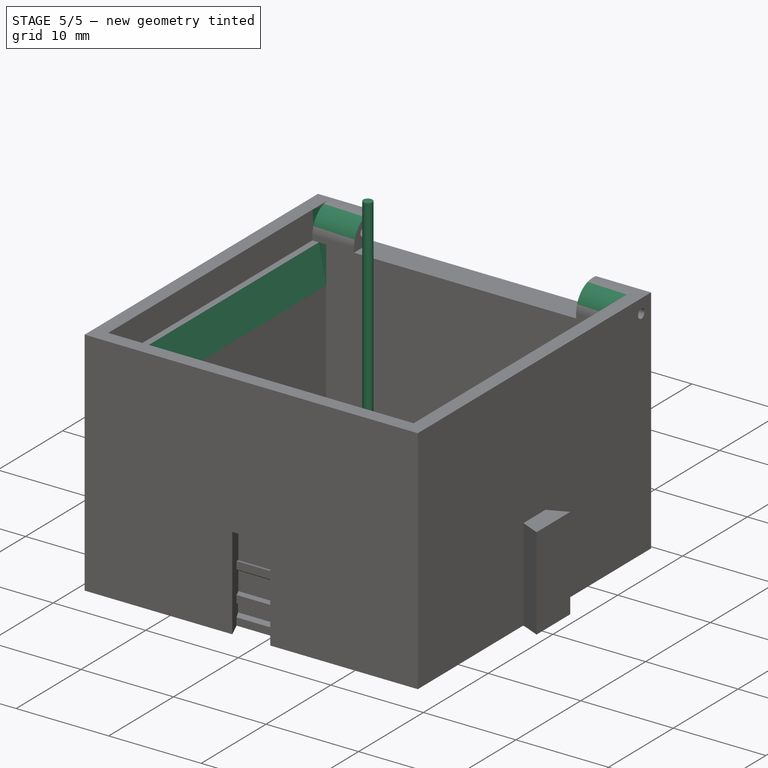
[diagram: stage 5 of 5 — iso view after this stage's code; geometry added in this stage tinted green]
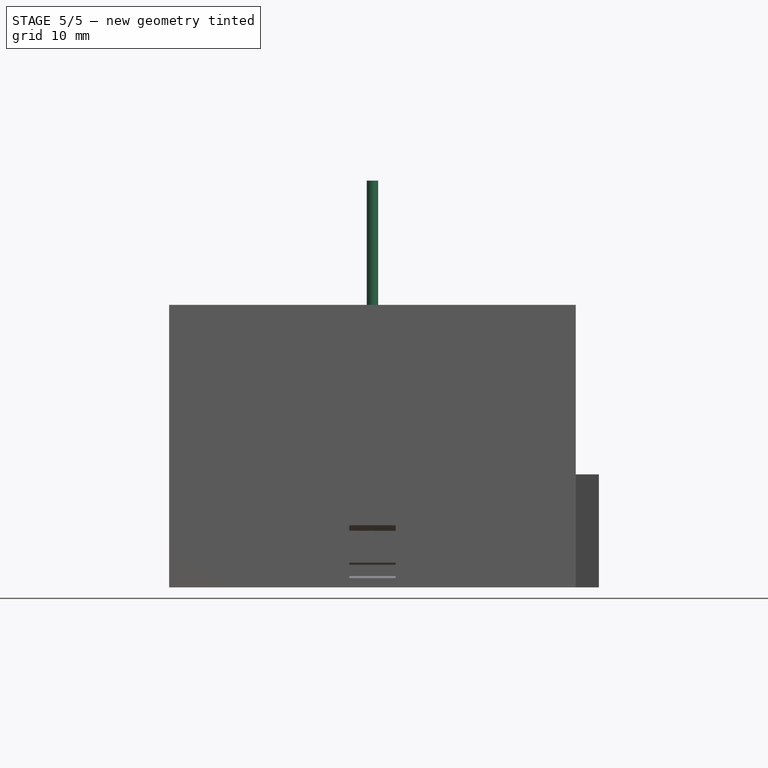
[diagram: stage 5 of 5 — front view after this stage's code; geometry added in this stage tinted green]
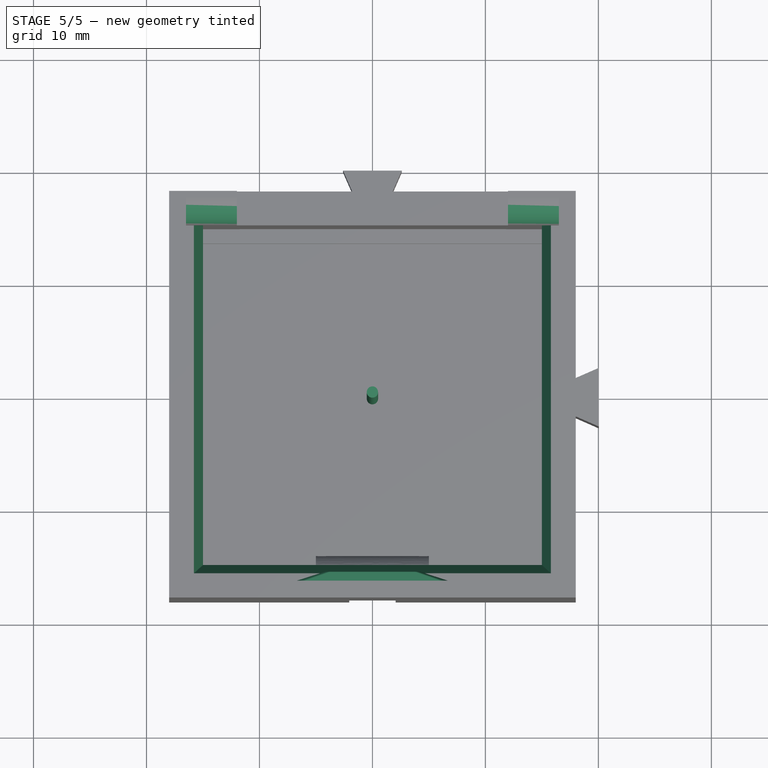
[diagram: stage 5 of 5 — top view after this stage's code; geometry added in this stage tinted green]
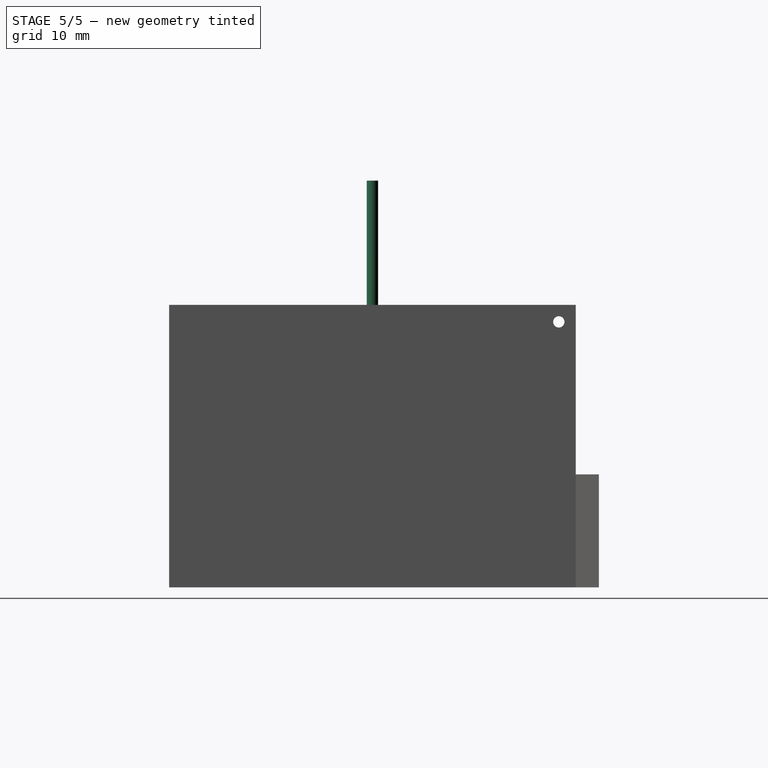
[diagram: stage 5 of 5 — right view after this stage's code; geometry added in this stage tinted green]
FEATURE [PartDesign::Plane] DatumPlane003  label="DatumPlaneLeadKeyBase"
  AttachmentOffset = pos=(0,0,16.5) rot=(0,0,1;3.14159rad)
  Length = 60
  MapMode = 5
  Placement = pos=(0,-16.5,-3.7e-15) rot=(0,-0.707107,0.707107;3.14159rad)
  ResizeMode = 0
  Support = -> [XZ_Plane001]
  Width = 60
  expr: .AttachmentOffset.Base.z = Spreadsheet.wallWidth / 2 + Spreadsheet.width / 2
FEATURE [Sketcher::SketchObject] Sketch007  label="leadKeyBase"
  MapMode = 5
  Placement = pos=(0,-16.5,-3.7e-15) rot=(0,0.707107,-0.707107;3.14159rad)
  Support = -> [DatumPlane003]
  expr: Constraints[6] = Spreadsheet.LeadKeyBaseLenght
  expr: Constraints[7] = Spreadsheet.hight + Spreadsheet.buttonPad + Spreadsheet.leadHight / 2
  expr: Constraints[8] = Spreadsheet.LeadKeyBaseWidth
  sketch-geometry (4):
    g0: ArcOfCircle CenterX=-6 CenterY=-23.5 CenterZ=0 NormalX=0 NormalY=0 NormalZ=1 AngleXU=0 Radius=0.75 StartAngle=1.5708 EndAngle=4.71239
    g1: ArcOfCircle CenterX=6 CenterY=-23.5 CenterZ=0 NormalX=0 NormalY=0 NormalZ=1 AngleXU=0 Radius=0.75 StartAngle=4.71239 EndAngle=7.85398
    g2: LineSegment StartX=-6 StartY=-24.25 StartZ=0 EndX=6 EndY=-24.25 EndZ=0
    g3: LineSegment StartX=-6 StartY=-22.75 StartZ=0 EndX=6 EndY=-22.75 EndZ=0
  constraints (9):
    c: Tangent(g0,g3)
    c: Tangent(g0,g2)
    c: Tangent(g2,g1)
    c: Tangent(g3,g1)
    c: Horizontal(g2)
    c: Symmetric(g0,g1,g-2)
    c: DistanceY(g0,g0) = 1.5
    c: DistanceY(g0,g-1) = 23.5
    c: DistanceX(g0,g1) = 12
FEATURE [PartDesign::Plane] DatumPlane004  label="DatumPlaneLeadKeyEnd"
  AttachmentOffset = pos=(0,0,15.7) rot=(0,0,1;0rad)
  Length = 60
  MapMode = 2
  Placement = pos=(0,-15.7,-3.5e-15) rot=(1,0,0;1.5708rad)
  ResizeMode = 0
  Support = -> [XZ_Plane001]
  Width = 60
  expr: .AttachmentOffset.Base.z = Spreadsheet.wallWidth / 2 + Spreadsheet.width / 2 - Spreadsheet.leadKeyPad
FEATURE [Sketcher::SketchObject] Sketch008  label="leadKeyEnd"
  ExternalGeometry = -> [Sketch007]
  MapMode = 5
  Placement = pos=(0,-15.7,-3.5e-15) rot=(1,0,0;1.5708rad)
  Support = -> [DatumPlane004]
  expr: Constraints[9] = Spreadsheet.LeadKeyEndWidth
  expr: Constraints[10] = Spreadsheet.LeadKeyEndLength
  sketch-geometry (5):
    g0: ArcOfCircle CenterX=-3.75 CenterY=23.5 CenterZ=0 NormalX=0 NormalY=0 NormalZ=1 AngleXU=0 Radius=0.5 StartAngle=1.5708 EndAngle=4.71239
    g1: ArcOfCircle CenterX=3.75 CenterY=23.5 CenterZ=0 NormalX=0 NormalY=0 NormalZ=1 AngleXU=0 Radius=0.5 StartAngle=4.71239 EndAngle=7.85398
    g2: LineSegment StartX=-3.75 StartY=23 StartZ=0 EndX=3.75 EndY=23 EndZ=0
    g3: LineSegment StartX=-3.75 StartY=24 StartZ=0 EndX=3.75 EndY=24 EndZ=0
    g4: LineSegment [constr] StartX=-6 StartY=23.5 StartZ=0 EndX=6 EndY=23.5 EndZ=0
  constraints (11):
    c: Tangent(g0,g3)
    c: Tangent(g0,g2)
    c: Tangent(g2,g1)
    c: Tangent(g3,g1)
    c: Horizontal(g2)
    c: Symmetric(g1,g0,g-2)
    c: Coincident(g4,g-3)
    c: Coincident(g4,g-4)
    c: PointOnObject(g1,g4)
    c: DistanceX(g0,g1) = 7.5
    c: DistanceY(g0,g0) = 1
FEATURE [PartDesign::AdditiveLoft] AdditiveLoft
  BaseFeature = -> Pocket002
  Closed = false
  Profile = -> Sketch007
  Ruled = false
  Sections = -> [Sketch008]
FEATURE [PartDesign::CoordinateSystem] LCS_1  label="LCDLead"
  AttacherType = Attacher::AttachEngine3D
  MapMode = 11
  Placement = pos=(-12,16.5,23.5) rot=(0.707107,0,0.707107;3.14159rad)
  Support = -> [AdditiveLoft]
FEATURE [PartDesign::CoordinateSystem] LCS_2
  AttacherType = Attacher::AttachEngine3D
  MapMode = 11
  Placement = pos=(-11.8,16.8,1.5) rot=(0.707107,0,0.707107;3.14159rad)
  Support = -> [Pocket005]
  expr: .AttachmentOffset.Rotation.Yaw = Variables.angleLead
  expr: .AttachmentOffset.Base.x = 0mm
FEATURE [App::Link] box001
  AssemblyType = Asm4EE
  AttachedBy = #LCS_0
  AttachedTo = Parent Assembly#LCS_Origin
  LinkedObject = -> box
  expr: Placement = LCS_Origin.Placement * AttachmentOffset * LCS_0.Placement ^ -1
FEATURE [App::Link] cover001
  AssemblyType = Asm4EE
  AttachedBy = #LCS_2
  AttachedTo = box001#LCS_1
  LinkPlacement = pos=(-0.2,-0.3,22) rot=(0,0,1;0rad)
  LinkedObject = -> cover
  Placement = pos=(-0.2,-0.3,22) rot=(0,0,1;0rad)
  expr: Placement = box001.Placement * LCS_1.Placement * AttachmentOffset * LCS_2.Placement ^ -1
FEATURE [PartDesign::CoordinateSystem] LCS_0002  label="LCSHingePin"
  AttacherType = Attacher::AttachEngine3D
  MapMode = 2
  Support = -> [X_Axis003]
FEATURE [Sketcher::SketchObject] Sketch015
  MapMode = 5
  Support = -> [XY_Plane003]
  expr: Constraints[1] = Spreadsheet.leadMountingHole / 2
  sketch-geometry (1):
    g0: Circle CenterX=0 CenterY=0 CenterZ=0 NormalX=0 NormalY=0 NormalZ=1 AngleXU=0 Radius=0.5
  constraints (2):
    c: Coincident(g0,g-1)
    c: Radius(g0) = 0.5
FEATURE [PartDesign::Pad] Pad004
  Length = 36
  Length2 = 100
  Profile = -> Sketch015
  Type = 0
  expr: Length = Spreadsheet.lenght + Spreadsheet.wallWidth * 2
FEATURE [App::Link] box002
  AssemblyType = Asm4EE
  AttachedBy = #LCS_5
  AttachedTo = box001#LCS_4
  LinkPlacement = pos=(36,0.15,-1.75e-14) rot=(0,0,1;0rad)
  LinkedObject = -> box
  Placement = pos=(36,0.15,-1.75e-14) rot=(0,0,1;0rad)
  expr: Placement = box001.Placement * LCS_4.Placement * AttachmentOffset * LCS_5.Placement ^ -1
FEATURE [App::Part] Model
  Configuration = 0
  Group = -> [LCS_Origin,Constraints,Variables,box001,cover001,hingePin001,box002]
  Origin = -> Origin
  Type = Assembly4 Model
FEATURE [PartDesign::CoordinateSystem] Local_CS
  AttacherType = Attacher::AttachEngine3D
FEATURE [PartDesign::Fillet] Fillet001
  Base = -> AdditiveLoft [Edge85,Edge89]
  BaseFeature = -> AdditiveLoft
  Radius = 2.5
  SupportTransform = false
FEATURE [PartDesign::Chamfer] Chamfer
  Angle = 45
  Base = -> Fillet001 [Edge37,Edge38,Edge39]
  BaseFeature = -> Fillet001
  ChamferType = 1
  FlipDirection = false
  Size = 0.8
  Size2 = 4
  SupportTransform = false
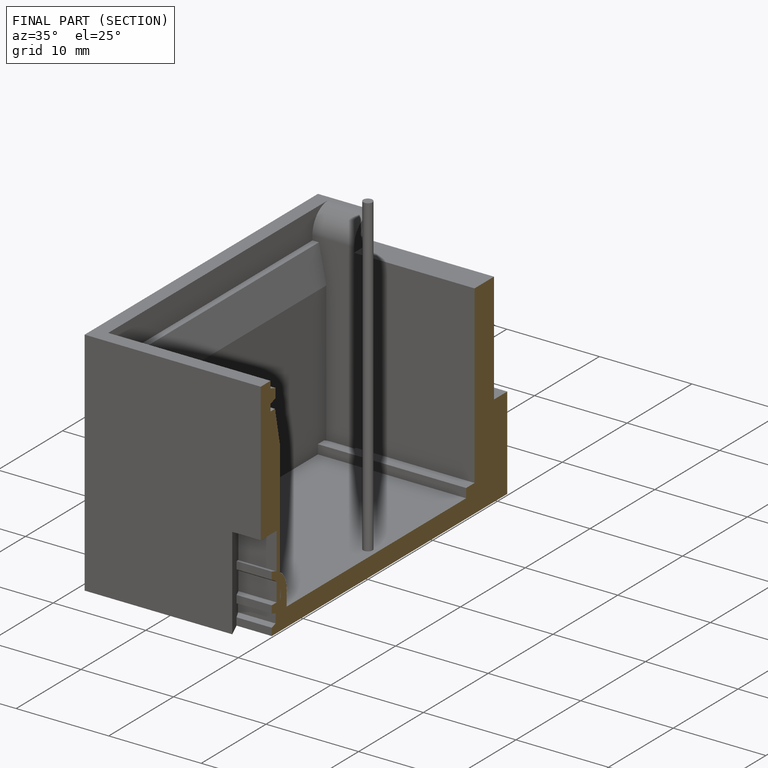
[diagram: finished part — half-section view (interior)]
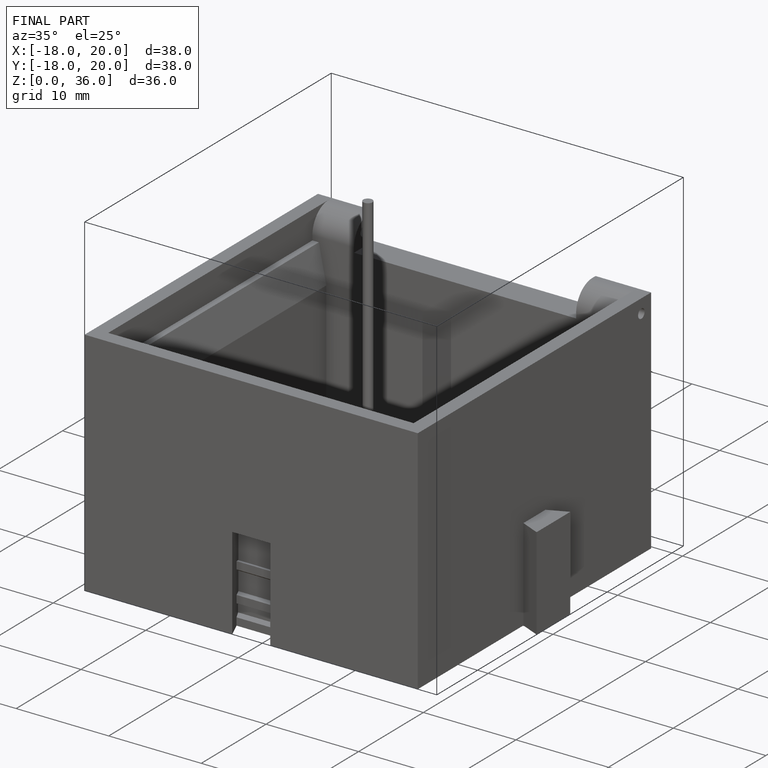
[diagram: finished part — iso view with bounding-box wireframe]
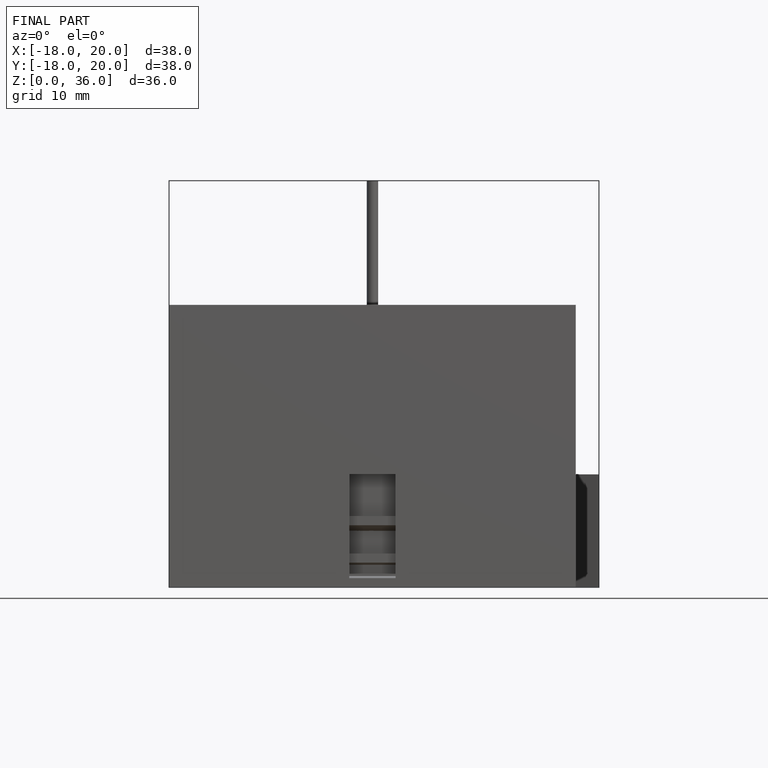
[diagram: finished part — front view with bounding-box wireframe]
